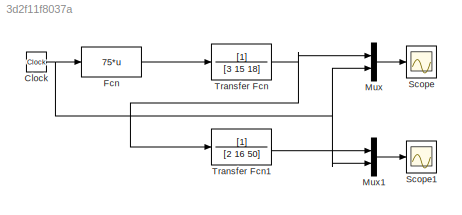
MODEL slx_3d2f11f8037a
KIND model
CONFIG AbsTol = auto
CONFIG FixedStep = auto
CONFIG MaxStep = auto
CONFIG MinStep = auto
CONFIG RelTol = 1e-3
CONFIG SampleTimeConstraint = Unconstrained
CONFIG Solver = ode45
CONFIG SolverMode = Auto
CONFIG SolverName = ode45
CONFIG StartTime = 0.0
CONFIG StopTime = 50
BLOCK [Clock] Clock
BLOCK [Fcn] Fcn
  Expr = 75*u
BLOCK [Mux] Mux
  DisplayOption = bar
  Inputs = 2
  Ports = [2, 1]
BLOCK [Mux] Mux1
  DisplayOption = bar
  Inputs = 2
  Ports = [2, 1]
BLOCK [Scope] Scope
  Floating = off
  NumInputPorts = 1
  Ports = [1]
BLOCK [Scope] Scope1
  Floating = off
  NumInputPorts = 1
  Ports = [1]
  SaveName = ScopeData1
BLOCK [TransferFcn] Transfer Fcn
  Denominator = [3 15 18]
BLOCK [TransferFcn] Transfer Fcn1
  Denominator = [2 16 50]
NET Clock:1 -> Fcn:1, Mux1:2, Mux:2
LINE Fcn:1 -> Transfer Fcn:1
LINE Mux1:1 -> Scope1:1
LINE Mux:1 -> Scope:1
LINE Transfer Fcn1:1 -> Mux1:1
NET Transfer Fcn:1 -> Mux:1, Transfer Fcn1:1
note: NET lines group one-source signal fan-out (src -> all destinations, sorted); 1:1 wires keep LINE
